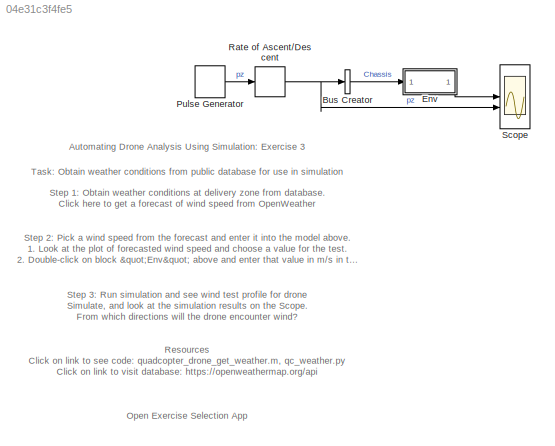
MODEL slx_04e31c3f4fe5
KIND model
CONFIG MaxStep = 0.01
CONFIG SolverName = VariableStepAuto
CONFIG StopTime = 200
BLOCK [BusCreator] Bus Creator
  DisplayOption = bar
  InheritFromInputs = on
  Inputs = 1
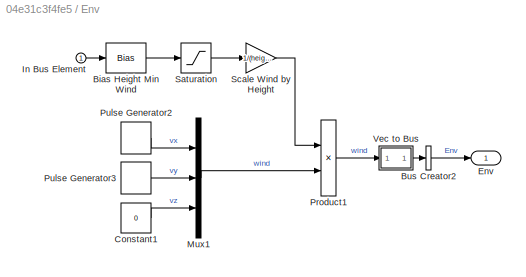
BLOCK [SubSystem] Env
BLOCK [Bias] Env/Bias Height Min Wind
  Bias = -height_min_wind
  SaturateOnIntegerOverflow = off
BLOCK [BusCreator] Env/Bus Creator2
  DisplayOption = bar
  InheritFromInputs = on
  Inputs = 1
BLOCK [Constant] Env/Constant1
  Value = 0
BLOCK [Outport] Env/Env
BLOCK [Inport] Env/In Bus Element
BLOCK [Mux] Env/Mux1
  DisplayOption = bar
  Inputs = 3
BLOCK [Product] Env/Product1
BLOCK [DiscretePulseGenerator] Env/Pulse Generator2
  Amplitude = wind_speed_mag
  Period = 10
  PhaseDelay = 5
  PulseType = Time based
  PulseWidth = 25
BLOCK [DiscretePulseGenerator] Env/Pulse Generator3
  Amplitude = wind_speed_mag
  Period = 10
  PhaseDelay = 9
  PulseType = Time based
  PulseWidth = 25
BLOCK [Saturate] Env/Saturation
  LowerLimit = 0
  UpperLimit = height_max_wind-height_min_wind
  ZeroCross = off
BLOCK [Gain] Env/Scale Wind by Height 
  Gain = 1/(height_max_wind-height_min_wind)
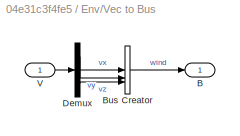
BLOCK [SubSystem] Env/Vec to Bus
BLOCK [Outport] Env/Vec to Bus/B
BLOCK [BusCreator] Env/Vec to Bus/Bus Creator
  DisplayOption = bar
  InheritFromInputs = on
  Inputs = 3
BLOCK [Demux] Env/Vec to Bus/Demux
  Outputs = 3
BLOCK [Inport] Env/Vec to Bus/V
BLOCK [DiscretePulseGenerator] Pulse Generator
  Amplitude = 6
  Period = 100
  PhaseDelay = 10
  PulseType = Time based
  PulseWidth = 70
BLOCK [RateLimiter] Rate of Ascent//Descent
  FallingSlewLimit = -6/20
  RisingSlewLimit = 6/20
  SampleTimeMode = inherited
BLOCK [Scope] Scope
  ActiveDisplayYMaximum = 11.25
  ActiveDisplayYMinimum = -1.25
  Floating = off
  GraphicalSettings = {"GraphicalSettings":{"LegacySettings":true,"Style":{"AxesScalingProperties":{"ScaleAxesLimitsAtStop":false},"Style":{"AxesColor":"[0 0 0]","ChannelNames":["",""],"ColorOrder":"[1 0.909803921568627 0.392156862745098;0.149019607843137 0.549019607843137 0.866666666666667;0.96078431372549 0.466666666666667 0.16078431372549;0.286274509803922 0.858823529411765 0.250980392156863;0.752941176470588 0.3607...<+544ch>
  LayoutDimensionsString = [2 1]
  MultipleDisplayCache = [{"MaxYLimMag":11.25,"MaxYLimReal":11.25,"MinYLimMag":0,"MinYLimReal":-1.25,"PlotAsMagnitudePhase":false,"ShowGrid":true,"ShowLegend":true,"Title":"Wind Speed (global x, y, z)","YLabel":"m\/s"},{"MaxYLimMag":11.25,"MaxYLimReal":6.75,"MinYLimMag":0,"MinYLimReal":-0.75,"PlotAsMagnitudePhase":false,"ShowGrid":true,"ShowLegend":true,"Title":"Drone Height","YLabel":"m"}]
  NumInputPorts = 2
  ScopeFrameLocation = window
  ShowLegend = on
  Title = Wind Speed (global x, y, z)
  Visible = on
  WasSavedAsWebScope = on
  WindowPosition = [721.000000,339.000000,467.000000,439.000000,]
  YLabel = m/s
ANNOTATION (root): Automating Drone Analysis Using Simulation: Exercise 3
ANNOTATION (root): Open Exercise Selection App
ANNOTATION (root): Resources Click on link to see code: quadcopter_drone_get_weather.m , qc_weather.py Click on link to visit database: https://openweathermap.org/api
ANNOTATION (root): Step 1: Obtain weather conditions at delivery zone from database. Click here to get a forecast of wind speed from OpenWeather
ANNOTATION (root): Step 2: Pick a wind speed from the forecast and enter it into the model above. 1. Look at the plot of forecasted wind speed and choose a value for the test. 2. Double-click on block "Env" above and enter that value in m/s in the field "Wind Speed for Gust"
ANNOTATION (root): Step 3: Run simulation and see wind test profile for drone Simulate, and look at the simulation results on the Scope. From which directions will the drone encounter wind?
ANNOTATION (root): Task: Obtain weather conditions from public database for use in simulation
LINE Bus Creator:1 -> Env:1
LINE Env/Bias Height Min Wind:1 -> Env/Saturation:1
LINE Env/Bus Creator2:1 -> Env/Env:1
LINE Env/Constant1:1 -> Env/Mux1:3
LINE Env/In Bus Element:1 -> Env/Bias Height Min Wind:1
LINE Env/Mux1:1 -> Env/Product1:2
LINE Env/Product1:1 -> Env/Vec to Bus:1
LINE Env/Pulse Generator2:1 -> Env/Mux1:1
LINE Env/Pulse Generator3:1 -> Env/Mux1:2
LINE Env/Saturation:1 -> Env/Scale Wind by Height :1
LINE Env/Scale Wind by Height :1 -> Env/Product1:1
LINE Env/Vec to Bus/Bus Creator:1 -> Env/Vec to Bus/B:1
LINE Env/Vec to Bus/Demux:1 -> Env/Vec to Bus/Bus Creator:1
LINE Env/Vec to Bus/Demux:2 -> Env/Vec to Bus/Bus Creator:2
LINE Env/Vec to Bus/Demux:3 -> Env/Vec to Bus/Bus Creator:3
LINE Env/Vec to Bus/V:1 -> Env/Vec to Bus/Demux:1
LINE Env/Vec to Bus:1 -> Env/Bus Creator2:1
LINE Env:1 -> Scope:1
LINE Pulse Generator:1 -> Rate of Ascent//Descent:1
NET Rate of Ascent//Descent:1 -> Bus Creator:1, Scope:2
note: NET lines group one-source signal fan-out (src -> all destinations, sorted); 1:1 wires keep LINE
